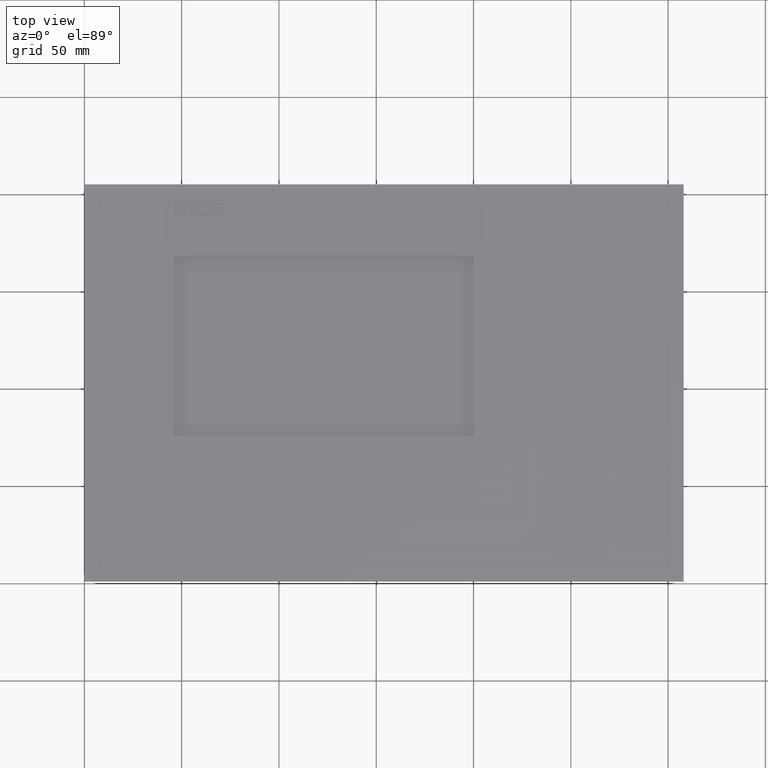
[diagram: clean part render]
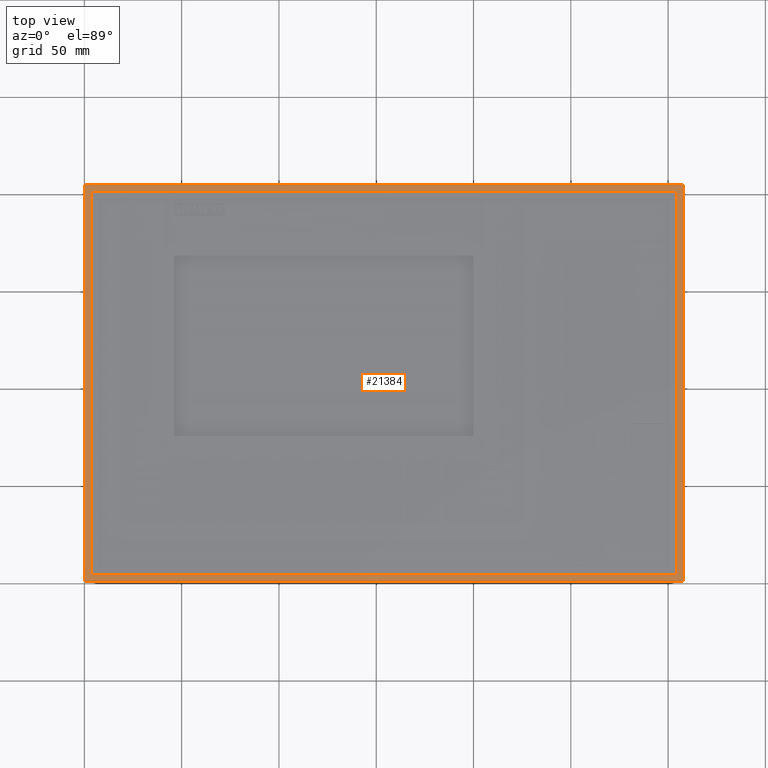
[diagram: same view with one face highlighted and labeled with its STEP entity id]
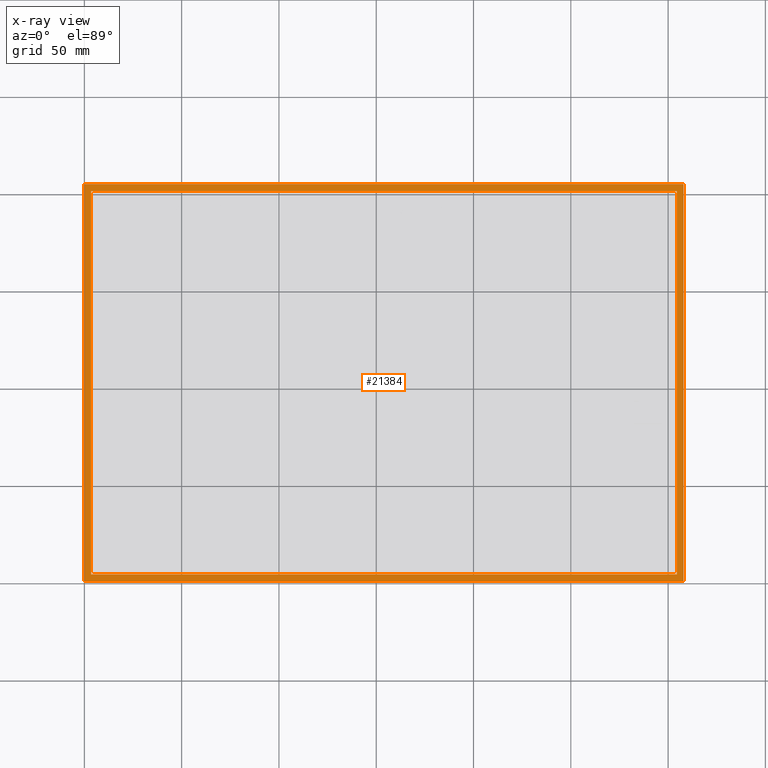
[diagram: x-ray of the same camera — body ghosted, the highlighted face saturated]
A machine part, top view. The second image highlights one B-rep face of the part: STEP entity #21384.
The next image is the same camera in x-ray: the body ghosted, the highlighted face saturated — about 0% of this face is hidden behind the body in this view.
In plain terms, the highlighted planar face has unit normal (0, 0, 1).
Its self-contained STEP definition (entity closure, byte-faithful):
#4418=LINE('',#82396,#11182);
#4422=LINE('',#82404,#11186);
#4425=LINE('',#82410,#11189);
#4428=LINE('',#82417,#11192);
#4432=LINE('',#82425,#11196);
#4435=LINE('',#82431,#11199);
#4437=LINE('',#82434,#11201);
#4439=LINE('',#82437,#11203);
#11182=VECTOR('',#67131,1.);
#11186=VECTOR('',#67137,1.);
#11189=VECTOR('',#67142,1.);
#11192=VECTOR('',#67147,1.);
#11196=VECTOR('',#67153,1.);
#11199=VECTOR('',#67158,1.);
#11201=VECTOR('',#67162,1.);
#11203=VECTOR('',#67166,1.);
#21384=ADVANCED_FACE('',(#28672,#28673),#24765,.T.);
#24765=PLANE('',#62955);
#28672=FACE_BOUND('',#29452,.T.);
#28673=FACE_BOUND('',#29453,.T.);
#29452=EDGE_LOOP('',(#34053,#34054,#34055,#34056));
#29453=EDGE_LOOP('',(#34057,#34058,#34059,#34060));
#34053=ORIENTED_EDGE('',*,*,#54895,.T.);
#34054=ORIENTED_EDGE('',*,*,#54899,.T.);
#34055=ORIENTED_EDGE('',*,*,#54902,.T.);
#34056=ORIENTED_EDGE('',*,*,#54904,.T.);
#34057=ORIENTED_EDGE('',*,*,#54885,.F.);
#34058=ORIENTED_EDGE('',*,*,#54889,.F.);
#34059=ORIENTED_EDGE('',*,*,#54892,.F.);
#34060=ORIENTED_EDGE('',*,*,#54906,.F.);
#49315=VERTEX_POINT('',#82395);
#49316=VERTEX_POINT('',#82397);
#49318=VERTEX_POINT('',#82403);
#49320=VERTEX_POINT('',#82409);
#49323=VERTEX_POINT('',#82416);
#49324=VERTEX_POINT('',#82418);
#49326=VERTEX_POINT('',#82424);
#49328=VERTEX_POINT('',#82430);
#54885=EDGE_CURVE('',#49315,#49316,#4418,.T.);
#54889=EDGE_CURVE('',#49318,#49315,#4422,.T.);
#54892=EDGE_CURVE('',#49320,#49318,#4425,.T.);
#54895=EDGE_CURVE('',#49324,#49323,#4428,.T.);
#54899=EDGE_CURVE('',#49323,#49326,#4432,.T.);
#54902=EDGE_CURVE('',#49326,#49328,#4435,.T.);
#54904=EDGE_CURVE('',#49328,#49324,#4437,.T.);
#54906=EDGE_CURVE('',#49316,#49320,#4439,.T.);
#62955=AXIS2_PLACEMENT_3D('',#82439,#67169,#67170);
#67131=DIRECTION('',(-4.91570846127984E-014,-1.,0.));
#67137=DIRECTION('',(-1.,0.,0.));
#67142=DIRECTION('',(-3.29591914022774E-014,1.,0.));
#67147=DIRECTION('',(0.,-1.,0.));
#67153=DIRECTION('',(1.,0.,0.));
#67158=DIRECTION('',(0.,1.,0.));
#67162=DIRECTION('',(-1.,0.,0.));
#67166=DIRECTION('',(1.,0.,0.));
#67169=DIRECTION('',(0.,0.,1.));
#67170=DIRECTION('',(1.,0.,0.));
#82395=CARTESIAN_POINT('',(-150.52944484649,98.5279738023,0.3));
#82396=CARTESIAN_POINT('',(-150.52944484649,98.5279738023,0.3));
#82397=CARTESIAN_POINT('',(-150.5294448465,-98.5279738023,0.3));
#82403=CARTESIAN_POINT('',(150.5294448465,98.5279738023,0.3));
#82404=CARTESIAN_POINT('',(150.5294448465,98.5279738023,0.3));
#82409=CARTESIAN_POINT('',(150.529444846506,-98.5279738023,0.3));
#82410=CARTESIAN_POINT('',(150.529444846506,-98.5279738023,0.3));
#82416=CARTESIAN_POINT('',(-154.,-102.,0.3));
#82417=CARTESIAN_POINT('',(-154.,102.,0.3));
#82418=CARTESIAN_POINT('',(-154.,102.,0.3));
#82424=CARTESIAN_POINT('',(154.,-102.,0.3));
#82425=CARTESIAN_POINT('',(-154.,-102.,0.3));
#82430=CARTESIAN_POINT('',(154.,102.,0.3));
#82431=CARTESIAN_POINT('',(154.,-102.,0.3));
#82434=CARTESIAN_POINT('',(154.,102.,0.3));
#82437=CARTESIAN_POINT('',(-150.5294448465,-98.5279738023,0.3));
#82439=CARTESIAN_POINT('',(-154.,-102.,0.3));